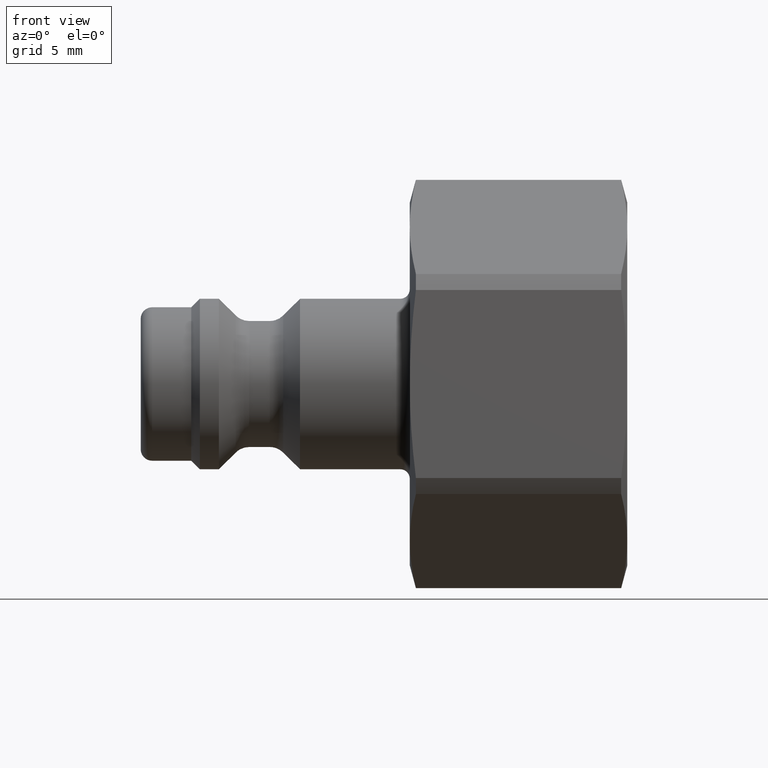
[diagram: clean part render]
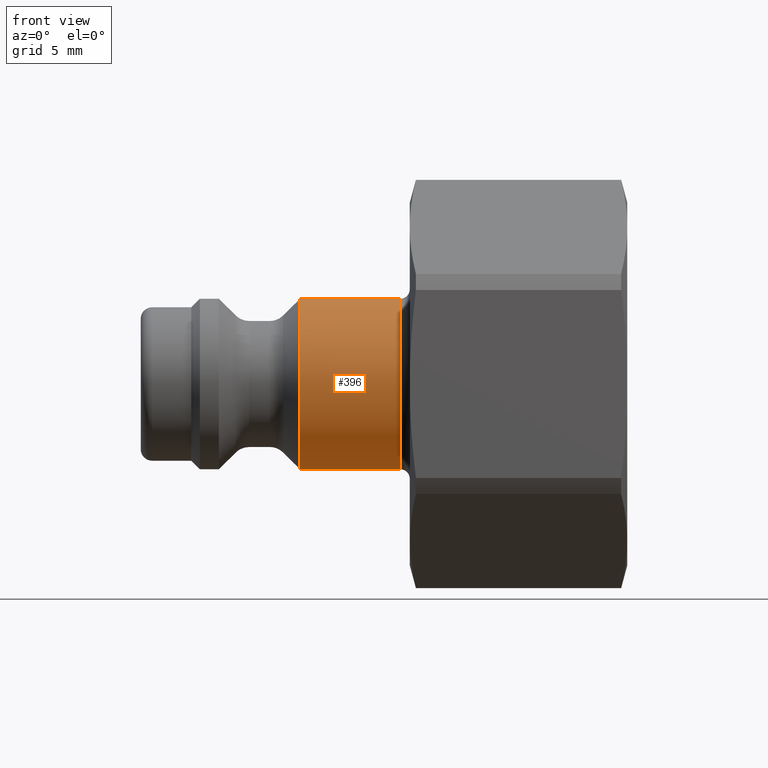
[diagram: same view with one face highlighted and labeled with its STEP entity id]
A machine part, front view. The second image highlights one B-rep face of the part: STEP entity #396.
In plain terms, the highlighted cylindrical surface (bore or boss wall) has radius 4.5 mm, axis along (1, 0, 0).
Its self-contained STEP definition (entity closure, byte-faithful):
#274=CARTESIAN_POINT('',(8.349999999999998,4.5,0.0));
#275=VERTEX_POINT('',#274);
#276=CARTESIAN_POINT('',(8.349999999999998,0.0,0.0));
#277=DIRECTION('',(1.0,0.0,0.0));
#278=DIRECTION('',(0.0,1.0,0.0));
#279=AXIS2_PLACEMENT_3D('',#276,#277,#278);
#280=CIRCLE('',#279,4.5);
#281=EDGE_CURVE('',#275,#275,#280,.T.);
#362=CARTESIAN_POINT('',(13.600000000000001,4.5,0.0));
#363=VERTEX_POINT('',#362);
#364=CARTESIAN_POINT('',(13.600000000000001,0.0,0.0));
#365=DIRECTION('',(1.0,0.0,0.0));
#366=DIRECTION('',(0.0,-1.0,0.0));
#367=AXIS2_PLACEMENT_3D('',#364,#365,#366);
#368=CIRCLE('',#367,4.5);
#369=EDGE_CURVE('',#363,#363,#368,.T.);
#385=CARTESIAN_POINT('',(11.225000000000001,0.0,0.0));
#386=DIRECTION('',(1.0,0.0,0.0));
#387=DIRECTION('',(0.0,1.0,0.0));
#388=AXIS2_PLACEMENT_3D('',#385,#386,#387);
#389=CYLINDRICAL_SURFACE('',#388,4.5);
#390=ORIENTED_EDGE('',*,*,#281,.T.);
#391=EDGE_LOOP('',(#390));
#392=FACE_OUTER_BOUND('',#391,.T.);
#393=ORIENTED_EDGE('',*,*,#369,.F.);
#394=EDGE_LOOP('',(#393));
#395=FACE_BOUND('',#394,.T.);
#396=ADVANCED_FACE('',(#392,#395),#389,.T.);